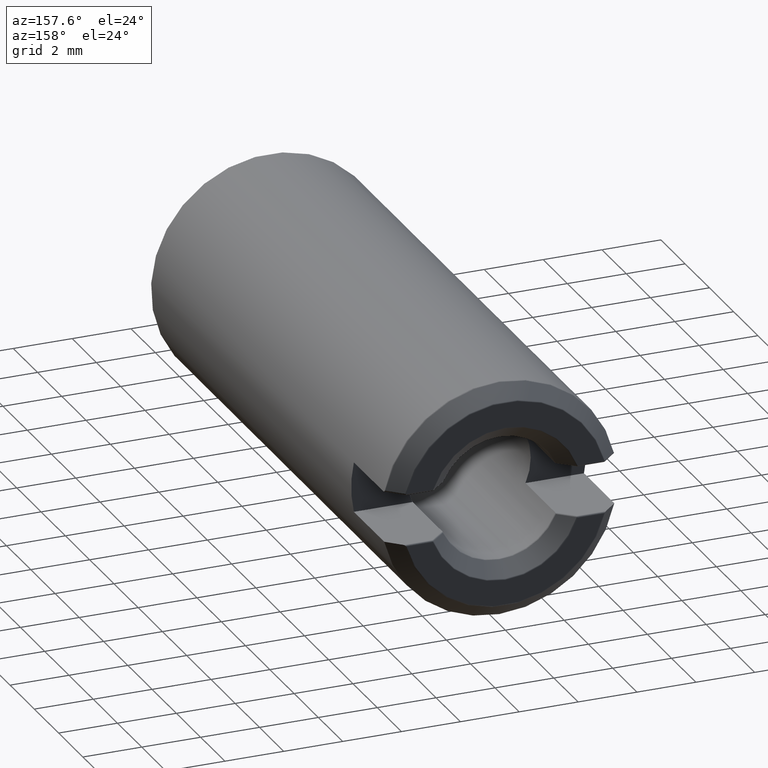
[diagram: clean part render]
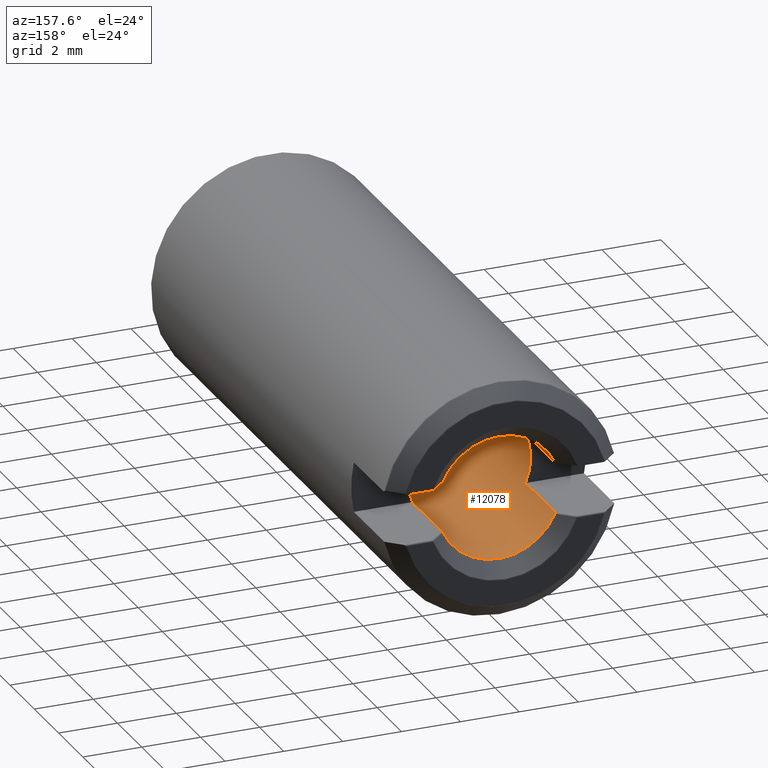
[diagram: same view with one face highlighted and labeled with its STEP entity id]
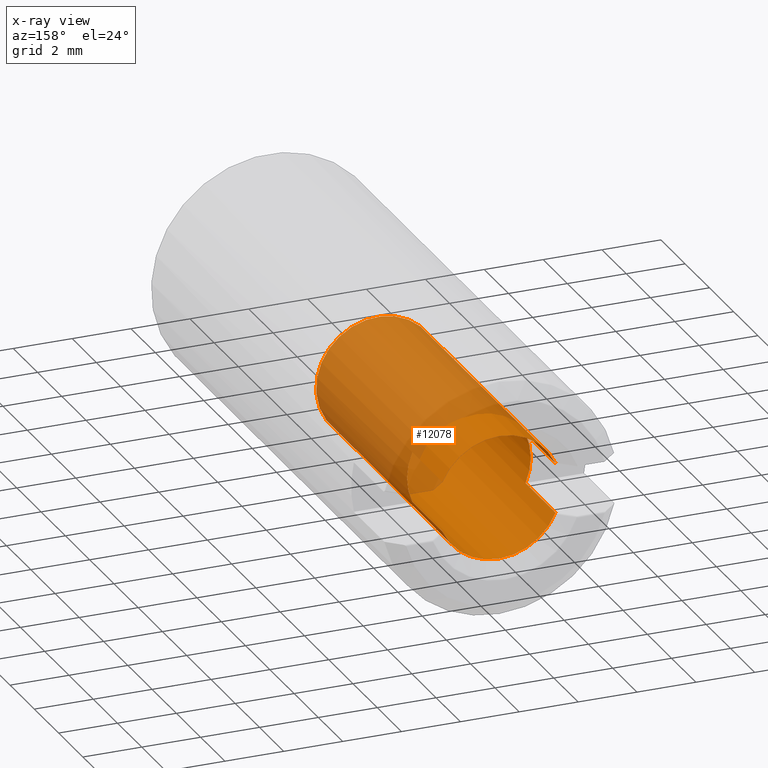
[diagram: x-ray of the same camera — body ghosted, the highlighted face saturated]
A machine part, auxiliary view. The second image highlights one B-rep face of the part: STEP entity #12078.
The next image is the same camera in x-ray: the body ghosted, the highlighted face saturated — about 57% of this face is hidden behind the body in this view.
In plain terms, the highlighted cylindrical surface (bore or boss wall) has radius 2.1 mm, axis along (-0, 1, -0).
Its self-contained STEP definition (entity closure, byte-faithful):
#341 = CARTESIAN_POINT ( 'NONE',  ( 1.920286436967146600, 19.45315221694794500, 0.8500000000000010900 ) ) ;
#401 = CARTESIAN_POINT ( 'NONE',  ( 1.919761782637632800, 19.46716126453521800, -0.8511900907123223200 ) ) ;
#496 = CARTESIAN_POINT ( 'NONE',  ( 0.0000000000000000000, 20.00000000000000000, 0.0000000000000000000 ) ) ;
#572 = VERTEX_POINT ( 'NONE', #3295 ) ;
#680 = CARTESIAN_POINT ( 'NONE',  ( 0.0000000000000000000, 17.00000000000000000, 0.0000000000000000000 ) ) ;
#783 = AXIS2_PLACEMENT_3D ( 'NONE', #16704, #8781, #15290 ) ;
#874 = CARTESIAN_POINT ( 'NONE',  ( -1.920061917370492700, 19.45939961659847100, -0.8505070449229267200 ) ) ;
#1066 = DIRECTION ( 'NONE',  ( 0.0000000000000000000, -1.000000000000000000, 0.0000000000000000000 ) ) ;
#1521 = VERTEX_POINT ( 'NONE', #13131 ) ;
#1639 = ORIENTED_EDGE ( 'NONE', *, *, #7654, .T. ) ;
#1712 = CARTESIAN_POINT ( 'NONE',  ( 1.918248002110121600, 19.47647123908303600, -0.8545905094781767200 ) ) ;
#1852 = B_SPLINE_CURVE_WITH_KNOTS ( 'NONE', 3,
 ( #5898, #15176, #16414, #4768, #13918, #8545, #2019 ),
 .UNSPECIFIED., .F., .F.,
 ( 4, 3, 4 ),
 ( 0.0000000000000000000, 2.539167821269747700E-005, 2.998651363416649700E-005 ),
 .UNSPECIFIED. ) ;
#1930 = DIRECTION ( 'NONE',  ( 0.0000000000000000000, 0.0000000000000000000, -1.000000000000000000 ) ) ;
#1933 = CARTESIAN_POINT ( 'NONE',  ( -1.917695498230973300, 19.47928932188134300, -0.8558294082728412600 ) ) ;
#2019 = CARTESIAN_POINT ( 'NONE',  ( -1.917695498230973500, 19.47928932188134300, 0.8558294082728398200 ) ) ;
#2130 = CARTESIAN_POINT ( 'NONE',  ( -1.920286436967146600, 19.45315221694794500, -0.8500000000000010900 ) ) ;
#2718 = CIRCLE ( 'NONE', #13510, 2.099999999999995600 ) ;
#2799 = EDGE_CURVE ( 'NONE', #10881, #11293, #6939, .T. ) ;
#2914 = CARTESIAN_POINT ( 'NONE',  ( 1.917985581509928300, 19.47789828591098500, -0.8551794056055031000 ) ) ;
#3019 = CARTESIAN_POINT ( 'NONE',  ( 1.917695498230973500, 19.47928932188134300, -0.8558294082728398200 ) ) ;
#3186 = EDGE_CURVE ( 'NONE', #6474, #16790, #13473, .T. ) ;
#3241 = DIRECTION ( 'NONE',  ( 0.0000000000000000000, -1.000000000000000000, 0.0000000000000000000 ) ) ;
#3295 = CARTESIAN_POINT ( 'NONE',  ( 0.0000000000000000000, 9.500000000000000000, -2.099999999999995600 ) ) ;
#3429 = CARTESIAN_POINT ( 'NONE',  ( -1.920286436967147300, 19.45002032792619300, -0.8499999999999997600 ) ) ;
#3437 = VECTOR ( 'NONE', #9327, 1000.000000000000000 ) ;
#3633 = DIRECTION ( 'NONE',  ( 0.0000000000000000000, 0.0000000000000000000, -1.000000000000000000 ) ) ;
#3678 = DIRECTION ( 'NONE',  ( -0.0000000000000000000, 1.000000000000000000, -0.0000000000000000000 ) ) ;
#3716 = CARTESIAN_POINT ( 'NONE',  ( -1.920286436967147300, 20.00000000000000000, -0.8499999999999997600 ) ) ;
#4150 = ORIENTED_EDGE ( 'NONE', *, *, #5099, .T. ) ;
#4397 = DIRECTION ( 'NONE',  ( 0.0000000000000000000, 0.0000000000000000000, -1.000000000000000000 ) ) ;
#4502 = CARTESIAN_POINT ( 'NONE',  ( -1.920286436967147300, 17.00000000000000000, -0.8499999999999997600 ) ) ;
#4511 = ORIENTED_EDGE ( 'NONE', *, *, #2799, .F. ) ;
#4551 = DIRECTION ( 'NONE',  ( -0.0000000000000000000, 1.000000000000000000, -0.0000000000000000000 ) ) ;
#4768 = CARTESIAN_POINT ( 'NONE',  ( -1.918483916939461600, 19.47502032792603900, 0.8540605718826983500 ) ) ;
#4813 = CARTESIAN_POINT ( 'NONE',  ( -1.917695498230973300, 19.47928932188134300, -0.8558294082728412600 ) ) ;
#4852 = ORIENTED_EDGE ( 'NONE', *, *, #16940, .T. ) ;
#4955 = CARTESIAN_POINT ( 'NONE',  ( 1.917695498230973500, 19.47928932188134300, -0.8558294082728398200 ) ) ;
#5099 = EDGE_CURVE ( 'NONE', #13546, #7686, #1852, .T. ) ;
#5210 = VECTOR ( 'NONE', #3678, 1000.000000000000000 ) ;
#5433 = CARTESIAN_POINT ( 'NONE',  ( -1.920286436967147300, 19.45002032792619300, -0.8499999999999997600 ) ) ;
#5541 = CARTESIAN_POINT ( 'NONE',  ( 1.919724424096653300, 19.46625752541531900, 0.8512689527593593200 ) ) ;
#5587 = VERTEX_POINT ( 'NONE', #4502 ) ;
#5598 = CARTESIAN_POINT ( 'NONE',  ( 0.0000000000000000000, 9.500000000000000000, 0.0000000000000000000 ) ) ;
#5898 = CARTESIAN_POINT ( 'NONE',  ( -1.920286436967147300, 19.45002032792619300, 0.8500000000000002000 ) ) ;
#6016 = ORIENTED_EDGE ( 'NONE', *, *, #11562, .F. ) ;
#6114 = EDGE_LOOP ( 'NONE', ( #15369 ) ) ;
#6183 = B_SPLINE_CURVE_WITH_KNOTS ( 'NONE', 3,
 ( #14819, #12115, #5541, #16059, #8181, #341, #12165 ),
 .UNSPECIFIED., .F., .F.,
 ( 4, 3, 4 ),
 ( 0.0000000000000000000, 2.072505409912797800E-005, 3.001246678383352000E-005 ),
 .UNSPECIFIED. ) ;
#6361 = EDGE_CURVE ( 'NONE', #13546, #6745, #16476, .T. ) ;
#6474 = VERTEX_POINT ( 'NONE', #1933 ) ;
#6543 = EDGE_CURVE ( 'NONE', #5587, #16790, #8063, .T. ) ;
#6554 = CARTESIAN_POINT ( 'NONE',  ( 1.920286436967147300, 20.00000000000000000, -0.8500000000000002000 ) ) ;
#6614 = CARTESIAN_POINT ( 'NONE',  ( -1.920286436967147300, 19.45002032792619300, 0.8500000000000002000 ) ) ;
#6745 = VERTEX_POINT ( 'NONE', #13329 ) ;
#6858 = CARTESIAN_POINT ( 'NONE',  ( 0.0000000000000000000, 19.47928932188134300, 0.0000000000000000000 ) ) ;
#6879 = EDGE_CURVE ( 'NONE', #7686, #10841, #2718, .T. ) ;
#6907 = DIRECTION ( 'NONE',  ( 0.0000000000000000000, 1.000000000000000000, 0.0000000000000000000 ) ) ;
#6929 = CARTESIAN_POINT ( 'NONE',  ( 1.918483916939461600, 19.47502032792603900, -0.8540605718826983500 ) ) ;
#6939 = LINE ( 'NONE', #6554, #3437 ) ;
#7041 = CARTESIAN_POINT ( 'NONE',  ( 1.920286436967147300, 19.45002032792619300, -0.8500000000000002000 ) ) ;
#7372 = CIRCLE ( 'NONE', #13764, 2.099999999999995600 ) ;
#7654 = EDGE_CURVE ( 'NONE', #10881, #16183, #15225, .T. ) ;
#7686 = VERTEX_POINT ( 'NONE', #11120 ) ;
#8063 = LINE ( 'NONE', #3716, #10153 ) ;
#8181 = CARTESIAN_POINT ( 'NONE',  ( 1.920214919356523400, 19.45629059561841600, 0.8501616353364769300 ) ) ;
#8235 = CARTESIAN_POINT ( 'NONE',  ( 1.920286436967031600, 19.45848422066375600, -0.8500000000002649900 ) ) ;
#8289 = DIRECTION ( 'NONE',  ( -0.0000000000000000000, 1.000000000000000000, -0.0000000000000000000 ) ) ;
#8297 = FACE_OUTER_BOUND ( 'NONE', #6114, .T. ) ;
#8545 = CARTESIAN_POINT ( 'NONE',  ( -1.917985581509928300, 19.47789828591098500, 0.8551794056055031000 ) ) ;
#8652 = CARTESIAN_POINT ( 'NONE',  ( -1.920214919356523400, 19.45629059561841600, -0.8501616353364769300 ) ) ;
#8760 = CARTESIAN_POINT ( 'NONE',  ( 1.920286436967147300, 19.45002032792619300, 0.8499999999999997600 ) ) ;
#8781 = DIRECTION ( 'NONE',  ( 0.0000000000000000000, 1.000000000000000000, 0.0000000000000000000 ) ) ;
#8821 = DIRECTION ( 'NONE',  ( -0.0000000000000000000, 1.000000000000000000, -0.0000000000000000000 ) ) ;
#9308 = DIRECTION ( 'NONE',  ( 0.0000000000000000000, -1.000000000000000000, 0.0000000000000000000 ) ) ;
#9327 = DIRECTION ( 'NONE',  ( 0.0000000000000000000, -1.000000000000000000, 0.0000000000000000000 ) ) ;
#9347 = CARTESIAN_POINT ( 'NONE',  ( 1.920286436967147300, 19.45002032792619300, -0.8500000000000002000 ) ) ;
#9425 = ORIENTED_EDGE ( 'NONE', *, *, #10662, .F. ) ;
#9628 = ORIENTED_EDGE ( 'NONE', *, *, #6361, .F. ) ;
#10153 = VECTOR ( 'NONE', #8821, 1000.000000000000000 ) ;
#10219 = CIRCLE ( 'NONE', #783, 2.099999999999995600 ) ;
#10236 = ORIENTED_EDGE ( 'NONE', *, *, #11592, .T. ) ;
#10580 = LINE ( 'NONE', #13982, #5210 ) ;
#10662 = EDGE_CURVE ( 'NONE', #6745, #5587, #7372, .T. ) ;
#10841 = VERTEX_POINT ( 'NONE', #13010 ) ;
#10881 = VERTEX_POINT ( 'NONE', #9347 ) ;
#11117 = CIRCLE ( 'NONE', #13227, 2.099999999999995600 ) ;
#11120 = CARTESIAN_POINT ( 'NONE',  ( -1.917695498230973500, 19.47928932188134300, 0.8558294082728398200 ) ) ;
#11132 = AXIS2_PLACEMENT_3D ( 'NONE', #5598, #8289, #4397 ) ;
#11293 = VERTEX_POINT ( 'NONE', #15456 ) ;
#11518 = CARTESIAN_POINT ( 'NONE',  ( 0.0000000000000000000, 17.00000000000000000, 0.0000000000000000000 ) ) ;
#11562 = EDGE_CURVE ( 'NONE', #1521, #11886, #10580, .T. ) ;
#11592 = EDGE_CURVE ( 'NONE', #16183, #6474, #10219, .T. ) ;
#11886 = VERTEX_POINT ( 'NONE', #8760 ) ;
#11900 = AXIS2_PLACEMENT_3D ( 'NONE', #496, #4551, #12370 ) ;
#12078 = ADVANCED_FACE ( 'NONE', ( #15918, #8297 ), #14906, .F. ) ;
#12115 = CARTESIAN_POINT ( 'NONE',  ( 1.918977996935047800, 19.47313935752032800, 0.8529556556680385500 ) ) ;
#12165 = CARTESIAN_POINT ( 'NONE',  ( 1.920286436967147300, 19.45002032792619300, 0.8499999999999997600 ) ) ;
#12370 = DIRECTION ( 'NONE',  ( 0.0000000000000000000, 0.0000000000000000000, 1.000000000000000000 ) ) ;
#12388 = CARTESIAN_POINT ( 'NONE',  ( -1.920286436967147300, 20.00000000000000000, 0.8500000000000002000 ) ) ;
#13010 = CARTESIAN_POINT ( 'NONE',  ( 1.917695498230973300, 19.47928932188134300, 0.8558294082728412600 ) ) ;
#13131 = CARTESIAN_POINT ( 'NONE',  ( 1.920286436967147300, 17.00000000000000000, 0.8499999999999997600 ) ) ;
#13227 = AXIS2_PLACEMENT_3D ( 'NONE', #11518, #1066, #3633 ) ;
#13302 = EDGE_LOOP ( 'NONE', ( #16733, #4852, #6016, #15592, #4511, #1639, #10236, #16129, #14035, #9425, #9628, #4150 ) ) ;
#13329 = CARTESIAN_POINT ( 'NONE',  ( -1.920286436967146600, 17.00000000000000000, 0.8500000000000002000 ) ) ;
#13333 = CIRCLE ( 'NONE', #11132, 2.099999999999995600 ) ;
#13418 = DIRECTION ( 'NONE',  ( 0.0000000000000000000, 0.0000000000000000000, -1.000000000000000000 ) ) ;
#13473 = B_SPLINE_CURVE_WITH_KNOTS ( 'NONE', 3,
 ( #4813, #13971, #16518, #874, #8652, #2130, #3429 ),
 .UNSPECIFIED., .F., .F.,
 ( 4, 3, 4 ),
 ( 0.0000000000000000000, 2.072505409912797800E-005, 3.001246678383352000E-005 ),
 .UNSPECIFIED. ) ;
#13510 = AXIS2_PLACEMENT_3D ( 'NONE', #6858, #6907, #13418 ) ;
#13546 = VERTEX_POINT ( 'NONE', #6614 ) ;
#13764 = AXIS2_PLACEMENT_3D ( 'NONE', #680, #3241, #1930 ) ;
#13918 = CARTESIAN_POINT ( 'NONE',  ( -1.918248002110121600, 19.47647123908303600, 0.8545905094781767200 ) ) ;
#13971 = CARTESIAN_POINT ( 'NONE',  ( -1.918977996935047800, 19.47313935752032800, -0.8529556556680385500 ) ) ;
#13982 = CARTESIAN_POINT ( 'NONE',  ( 1.920286436967147300, 20.00000000000000000, 0.8499999999999997600 ) ) ;
#14035 = ORIENTED_EDGE ( 'NONE', *, *, #6543, .F. ) ;
#14064 = VECTOR ( 'NONE', #9308, 1000.000000000000000 ) ;
#14819 = CARTESIAN_POINT ( 'NONE',  ( 1.917695498230973300, 19.47928932188134300, 0.8558294082728412600 ) ) ;
#14906 = CYLINDRICAL_SURFACE ( 'NONE', #11900, 2.099999999999995600 ) ;
#15114 = EDGE_CURVE ( 'NONE', #11293, #1521, #11117, .T. ) ;
#15176 = CARTESIAN_POINT ( 'NONE',  ( -1.920286436967031600, 19.45848422066375600, 0.8500000000002649900 ) ) ;
#15225 = B_SPLINE_CURVE_WITH_KNOTS ( 'NONE', 3,
 ( #7041, #8235, #401, #6929, #1712, #2914, #3019 ),
 .UNSPECIFIED., .F., .F.,
 ( 4, 3, 4 ),
 ( 0.0000000000000000000, 2.539167821269747700E-005, 2.998651363416649700E-005 ),
 .UNSPECIFIED. ) ;
#15290 = DIRECTION ( 'NONE',  ( 0.0000000000000000000, 0.0000000000000000000, -1.000000000000000000 ) ) ;
#15369 = ORIENTED_EDGE ( 'NONE', *, *, #16831, .F. ) ;
#15456 = CARTESIAN_POINT ( 'NONE',  ( 1.920286436967147300, 17.00000000000000000, -0.8500000000000002000 ) ) ;
#15592 = ORIENTED_EDGE ( 'NONE', *, *, #15114, .F. ) ;
#15918 = FACE_OUTER_BOUND ( 'NONE', #13302, .T. ) ;
#16059 = CARTESIAN_POINT ( 'NONE',  ( 1.920061917370492700, 19.45939961659847100, 0.8505070449229267200 ) ) ;
#16129 = ORIENTED_EDGE ( 'NONE', *, *, #3186, .T. ) ;
#16183 = VERTEX_POINT ( 'NONE', #4955 ) ;
#16414 = CARTESIAN_POINT ( 'NONE',  ( -1.919761782637632800, 19.46716126453521800, 0.8511900907123223200 ) ) ;
#16476 = LINE ( 'NONE', #12388, #14064 ) ;
#16518 = CARTESIAN_POINT ( 'NONE',  ( -1.919724424096653300, 19.46625752541531900, -0.8512689527593593200 ) ) ;
#16704 = CARTESIAN_POINT ( 'NONE',  ( 0.0000000000000000000, 19.47928932188134300, 0.0000000000000000000 ) ) ;
#16733 = ORIENTED_EDGE ( 'NONE', *, *, #6879, .T. ) ;
#16790 = VERTEX_POINT ( 'NONE', #5433 ) ;
#16831 = EDGE_CURVE ( 'NONE', #572, #572, #13333, .T. ) ;
#16940 = EDGE_CURVE ( 'NONE', #10841, #11886, #6183, .T. ) ;